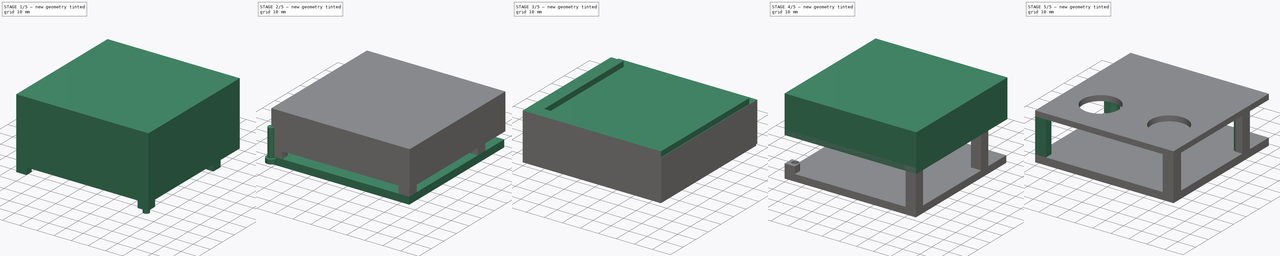
[diagram: build sequence overview — one tinted view per stage of 5, left to right]
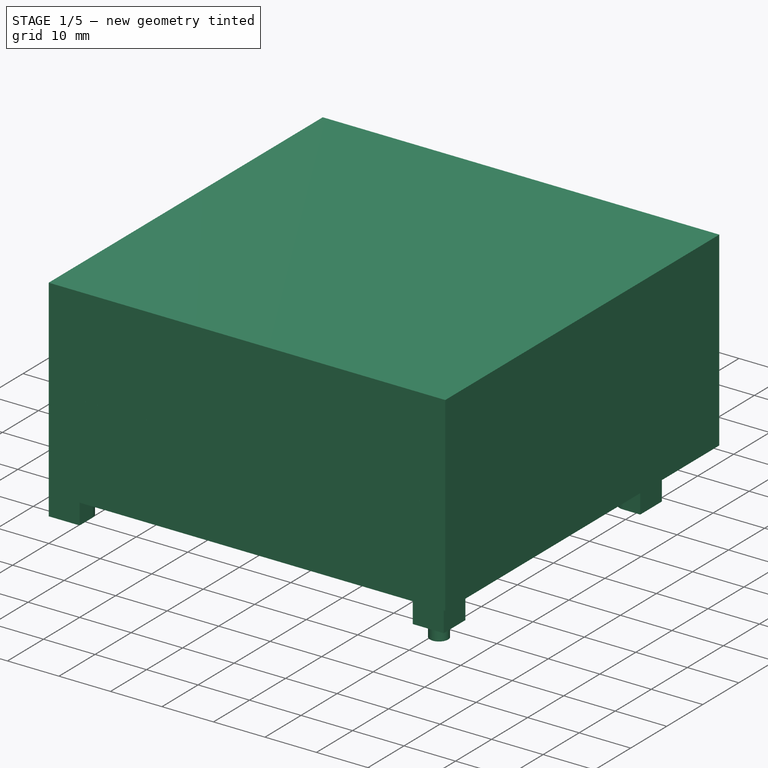
[diagram: stage 1 of 5 — iso view after this stage's code; geometry added in this stage tinted green]
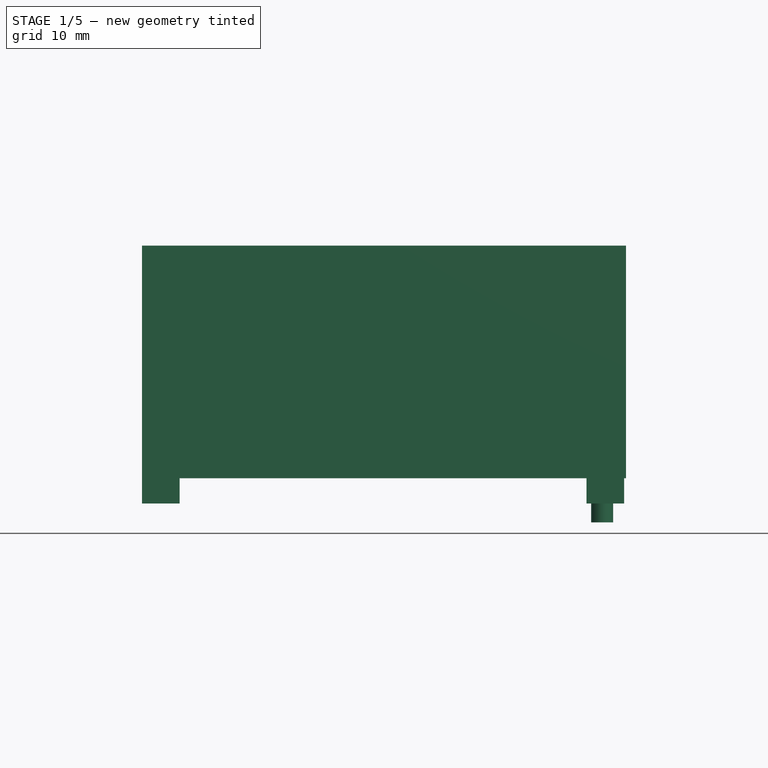
[diagram: stage 1 of 5 — front view after this stage's code; geometry added in this stage tinted green]
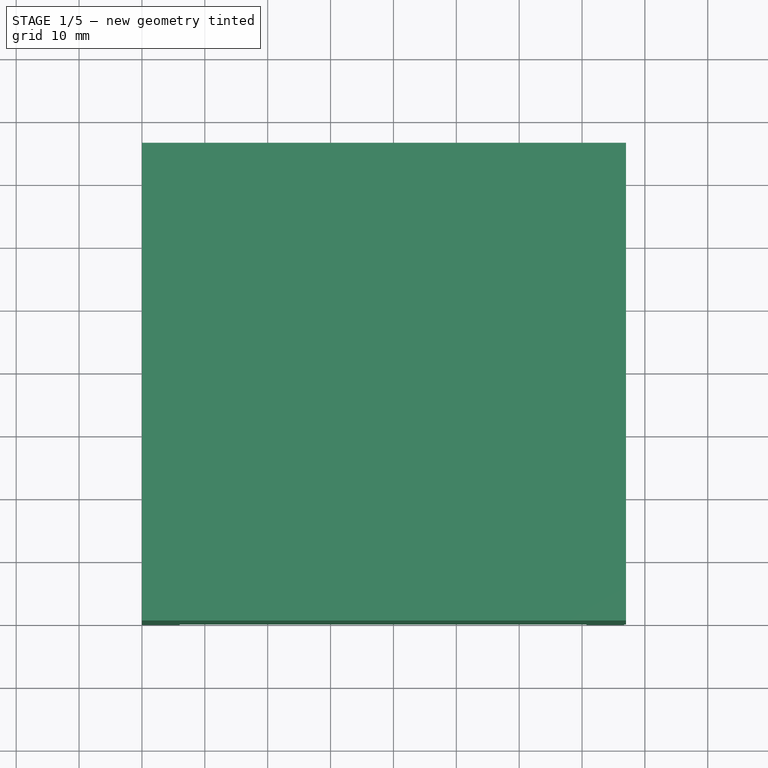
[diagram: stage 1 of 5 — top view after this stage's code; geometry added in this stage tinted green]
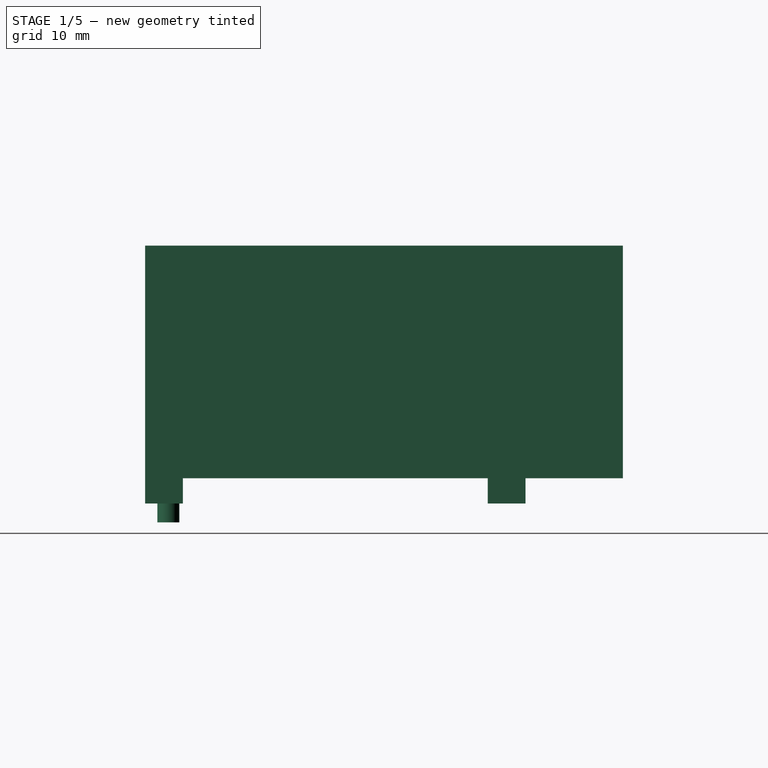
[diagram: stage 1 of 5 — right view after this stage's code; geometry added in this stage tinted green]
FCSTD DOCUMENT  (FreeCAD 0.19R24291 (Git))
Label: vacuum-tube-top-plate
License: All rights reserved
LicenseURL: http://en.wikipedia.org/wiki/All_rights_reserved
objects: Part::Cylinder×20, Part::Box×19, Part::Cut×17, Part::Fillet×12, Part::MultiFuse×11, Sketcher::SketchObject×4, Part::Extrusion×4, Part::Compound×1
note: 88 computed .brp shape members not serialized (recipe doc carries the construction recipe); baked Part::Feature solids carry a one-line shape summary decoded from their .brp

FEATURE [Part::Cylinder] Cylinder010  label="threaded-cutout-tr002"
  Angle = 360
  AttacherType = Attacher::AttachEngine3D
  Height = 22
  Placement = pos=(73.2,57.5,0) rot=(0,0,1;0rad)
  Radius = 1.75
FEATURE [Part::Cylinder] Cylinder011  label="threaded-cutout-br002"
  Angle = 360
  AttacherType = Attacher::AttachEngine3D
  Height = 22
  Placement = pos=(73.2,3.7,0) rot=(0,0,1;0rad)
  Radius = 1.75
FEATURE [Part::Cylinder] Cylinder012  label="threaded-cutout-tl002"
  Angle = 360
  AttacherType = Attacher::AttachEngine3D
  Height = 22
  Placement = pos=(3.5,57.5,0) rot=(0,0,1;0rad)
  Radius = 1.75
FEATURE [Part::Box] Box014  label="post-bl002"
  AttacherType = Attacher::AttachEngine3D
  Height = 19
  Length = 6
  Placement = pos=(0,0,3) rot=(0,0,1;0rad)
  Width = 6
FEATURE [Part::Fillet] Fillet008
  Base = -> Box014
  Edges = 1 edges r=2.5: [Edge7]
FEATURE [Part::Box] Box015  label="post-br002"
  AttacherType = Attacher::AttachEngine3D
  Height = 19
  Length = 6
  Placement = pos=(70.7,0,3) rot=(0,0,1;0rad)
  Width = 6
FEATURE [Part::Fillet] Fillet011
  Base = -> Box015
  Edges = 1 edges r=2.5: [Edge3]
FEATURE [Part::Box] Box016  label="post-tr002"
  AttacherType = Attacher::AttachEngine3D
  Height = 19
  Length = 6
  Placement = pos=(70.7,54.5,3) rot=(0,0,1;0rad)
  Width = 6
FEATURE [Part::Fillet] Fillet010
  Base = -> Box016
  Edges = 2 edges r=2.8: [Edge1,Edge3]
FEATURE [Part::Box] Box017  label="post-tl002"
  AttacherType = Attacher::AttachEngine3D
  Height = 19
  Length = 6
  Placement = pos=(0,54.5,3) rot=(0,0,1;0rad)
  Width = 6
FEATURE [Part::Fillet] Fillet009
  Base = -> Box017
  Edges = 2 edges r=2.8: [Edge5,Edge7]
FEATURE [Sketcher::SketchObject] Sketch003
  FullyConstrained = true
  sketch-geometry (10):
    g0: LineSegment StartX=0 StartY=0 StartZ=0 EndX=76.7 EndY=0 EndZ=0
    g1: LineSegment StartX=76.7 StartY=0 StartZ=0 EndX=76.7 EndY=75.5 EndZ=0
    g2: LineSegment StartX=76.7 StartY=75.5 StartZ=0 EndX=0 EndY=75.5 EndZ=0
    g3: LineSegment StartX=0 StartY=75.5 StartZ=0 EndX=0 EndY=0 EndZ=0
    g4: Circle CenterX=58.7 CenterY=22.3 CenterZ=0 NormalX=0 NormalY=0 NormalZ=1 AngleXU=0 Radius=10
    g5: Circle CenterX=20.7 CenterY=22.3 CenterZ=0 NormalX=0 NormalY=0 NormalZ=1 AngleXU=0 Radius=10
    g6: Circle CenterX=3.5 CenterY=3.7 CenterZ=0 NormalX=0 NormalY=0 NormalZ=1 AngleXU=0 Radius=1.75
    g7: Circle CenterX=73.2 CenterY=3.7 CenterZ=0 NormalX=0 NormalY=0 NormalZ=1 AngleXU=0 Radius=1.75
    g8: Circle CenterX=3.5 CenterY=57.5 CenterZ=0 NormalX=0 NormalY=0 NormalZ=1 AngleXU=0 Radius=1.75
    g9: Circle CenterX=73.2 CenterY=57.5 CenterZ=0 NormalX=0 NormalY=0 NormalZ=1 AngleXU=0 Radius=1.75
  constraints (29):
    c: Coincident(g0,g1)
    c: Coincident(g1,g2)
    c: Coincident(g2,g3)
    c: Coincident(g3,g0)
    c: Horizontal(g0)
    c: Horizontal(g2)
    c: Vertical(g1)
    c: Vertical(g3)
    c: Coincident(g0,g-1)
    c: DistanceX(g2,g2) = 76.7
    c: DistanceY(g1,g1) = 75.5
    c: Equal(g5,g4)
    c: DistanceY(g4,g5) = 0
    c: DistanceY(g0,g4) = 22.3
    c: DistanceX(g4,g0) = 18
    c: DistanceX(g5,g4) = 38
    c: DistanceY(g7,g6) = 0
    c: DistanceY(g0,g6) = 3.7
    c: DistanceX(g0,g6) = 3.5
    c: DistanceX(g7,g0) = 3.5
    c: Equal(g6,g7)
    c: Radius(g5) = 10
    c: Equal(g8,g9)
    c: DistanceY(g9,g8) = 0
    c: DistanceX(g9,g7) = 0
    c: DistanceX(g6,g8) = 0
    c: DistanceY(g8,g2) = 18
    c: Equal(g8,g6)
    c: Radius(g8) = 1.75
FEATURE [Part::Extrusion] Extrude003  label="vacuum-tube-top-plate002"
  Base = -> Sketch003
  Dir = (0,0,1)
  DirMode = 2
  FaceMakerClass = Part::FaceMakerBullseye
  LengthFwd = 3
  LengthRev = 0
  Placement = pos=(0,0,22) rot=(0,0,1;0rad)
  Solid = true
  Symmetric = false
FEATURE [Part::MultiFuse] Fusion002
  Shapes = -> [Fillet008,Fillet009,Fillet010,Fillet011,Extrude003]
FEATURE [Part::Cut] Cut011
  Base = -> Fusion002
  Tool = -> Cylinder010
FEATURE [Part::Cut] Cut010
  Base = -> Cut011
  Tool = -> Cylinder012
FEATURE [Part::Box] Box018  label="slicing-cube002"
  AttacherType = Attacher::AttachEngine3D
  Height = 22
  Length = 77
  Placement = pos=(0,0,22) rot=(0,0,1;0rad)
  Width = 76
FEATURE [Part::Box] Box022  label="Cube"
  AttacherType = Attacher::AttachEngine3D
  Height = 20
  Length = 77
  Placement = pos=(0,0,7) rot=(0,0,1;0rad)
  Width = 76
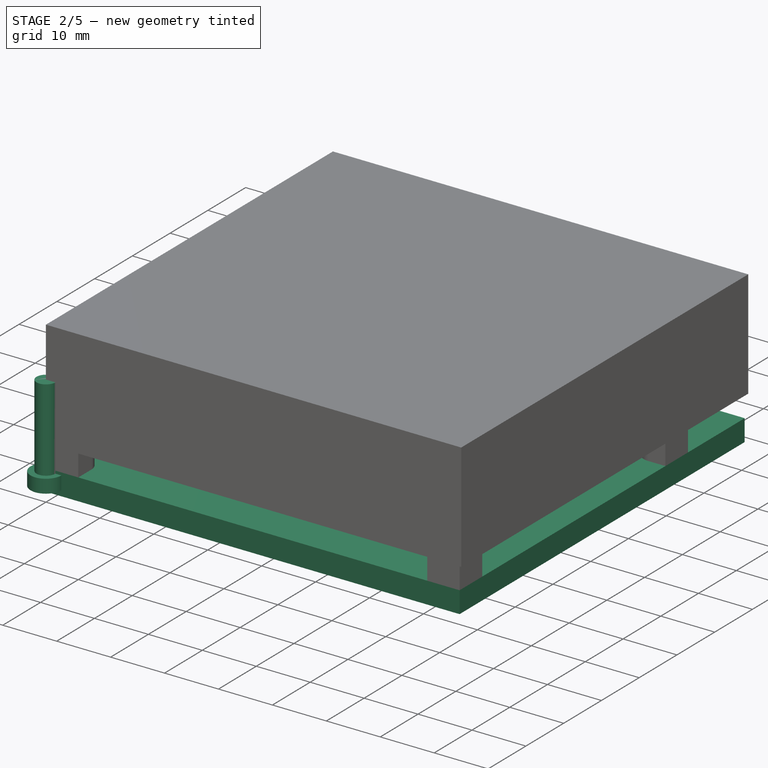
[diagram: stage 2 of 5 — iso view after this stage's code; geometry added in this stage tinted green]
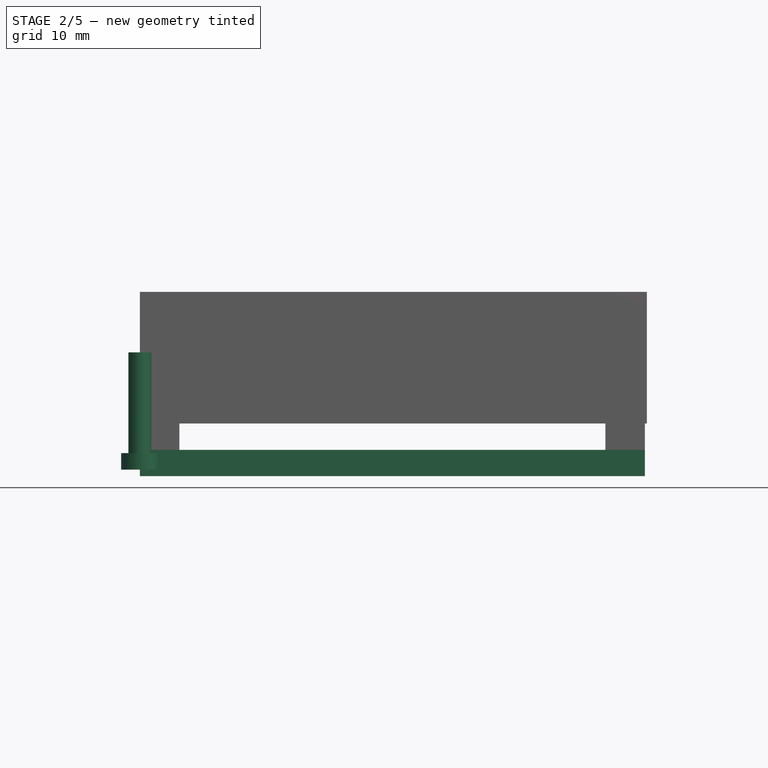
[diagram: stage 2 of 5 — front view after this stage's code; geometry added in this stage tinted green]
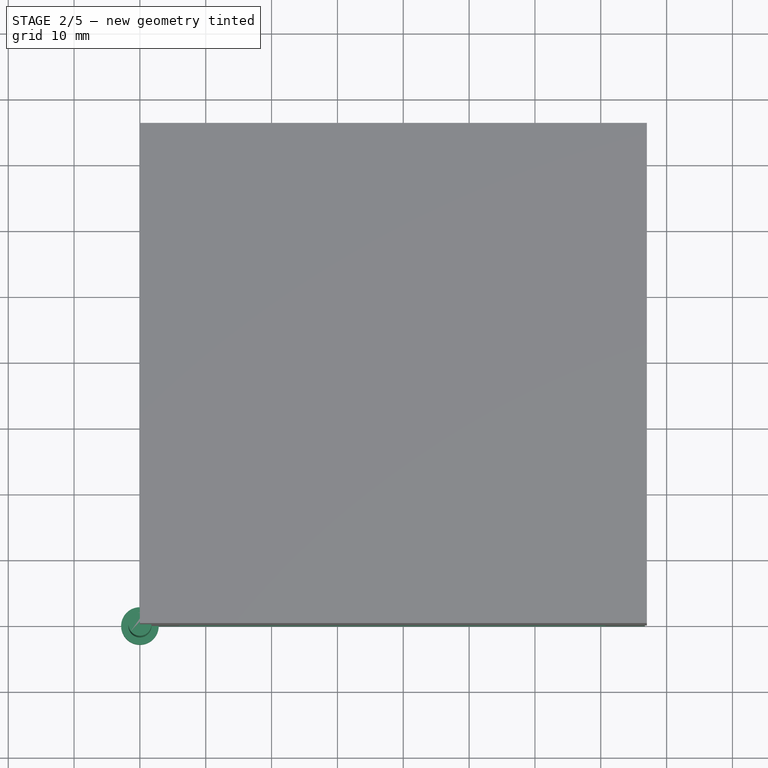
[diagram: stage 2 of 5 — top view after this stage's code; geometry added in this stage tinted green]
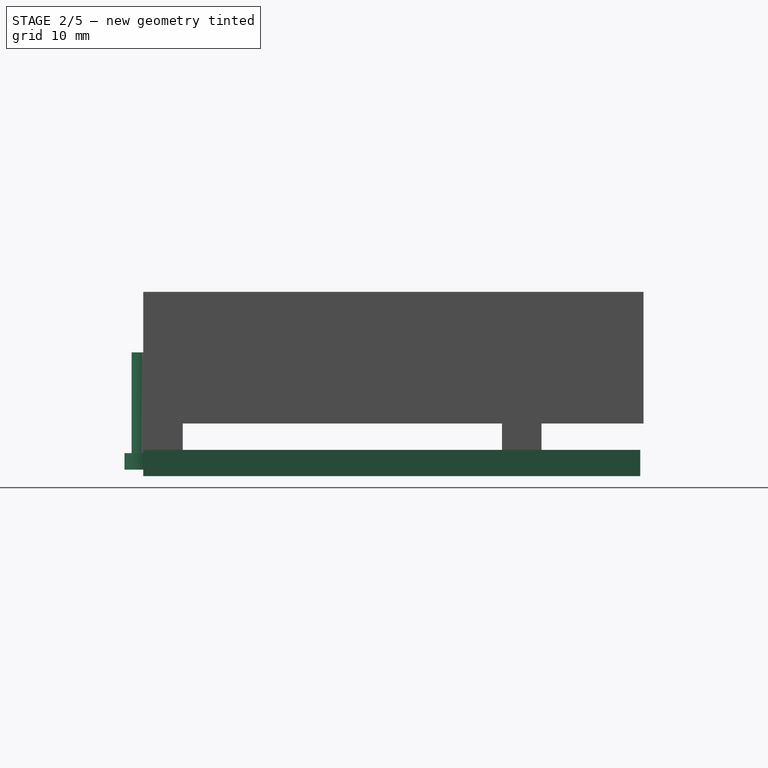
[diagram: stage 2 of 5 — right view after this stage's code; geometry added in this stage tinted green]
FEATURE [Sketcher::SketchObject] Sketch002
  FullyConstrained = true
  sketch-geometry (8):
    g0: LineSegment StartX=0 StartY=0 StartZ=0 EndX=76.7 EndY=0 EndZ=0
    g1: LineSegment StartX=76.7 StartY=0 StartZ=0 EndX=76.7 EndY=75.5 EndZ=0
    g2: LineSegment StartX=76.7 StartY=75.5 StartZ=0 EndX=0 EndY=75.5 EndZ=0
    g3: LineSegment StartX=0 StartY=75.5 StartZ=0 EndX=0 EndY=0 EndZ=0
    g4: Circle CenterX=3.5 CenterY=3.7 CenterZ=0 NormalX=0 NormalY=0 NormalZ=1 AngleXU=0 Radius=1.75
    g5: Circle CenterX=73.2 CenterY=3.7 CenterZ=0 NormalX=0 NormalY=0 NormalZ=1 AngleXU=0 Radius=1.75
    g6: Circle CenterX=3.5 CenterY=57.5 CenterZ=0 NormalX=0 NormalY=0 NormalZ=1 AngleXU=0 Radius=1.75
    g7: Circle CenterX=73.2 CenterY=57.5 CenterZ=0 NormalX=0 NormalY=0 NormalZ=1 AngleXU=0 Radius=1.75
  constraints (23):
    c: Coincident(g0,g1)
    c: Coincident(g1,g2)
    c: Coincident(g2,g3)
    c: Coincident(g3,g0)
    c: Horizontal(g0)
    c: Horizontal(g2)
    c: Vertical(g1)
    c: Vertical(g3)
    c: Coincident(g0,g-1)
    c: DistanceX(g2,g2) = 76.7
    c: DistanceY(g1,g1) = 75.5
    c: DistanceY(g5,g4) = 0
    c: DistanceY(g0,g4) = 3.7
    c: DistanceX(g0,g4) = 3.5
    c: DistanceX(g5,g0) = 3.5
    c: Equal(g4,g5)
    c: Equal(g6,g7)
    c: DistanceY(g7,g6) = 0
    c: DistanceX(g7,g5) = 0
    c: DistanceX(g4,g6) = 0
    c: DistanceY(g6,g2) = 18
    c: Equal(g6,g4)
    c: Radius(g6) = 1.75
FEATURE [Part::Extrusion] Extrude002  label="just-bottom-plate"
  Base = -> Sketch002
  Dir = (0,0,1)
  DirMode = 2
  FaceMakerClass = Part::FaceMakerBullseye
  LengthFwd = 4
  LengthRev = 0
  Placement = pos=(0,0,-1) rot=(0,0,1;0rad)
  Solid = true
  Symmetric = false
FEATURE [Part::Cylinder] Cylinder009  label="threaded-cutout-bl002"
  Angle = 360
  AttacherType = Attacher::AttachEngine3D
  Height = 22
  Placement = pos=(3.5,3.7,0) rot=(0,0,1;0rad)
  Radius = 1.75
FEATURE [Part::Cut] Cut012
  Base = -> Cut010
  Tool = -> Cylinder011
FEATURE [Part::Cut] Cut013  label="top-plate-with-posts002"
  Base = -> Cut012
  Tool = -> Cylinder009
FEATURE [Part::Cut] Cut014  label="just-bottom-legs"
  Base = -> Cut013
  Tool = -> Box018
FEATURE [Part::Cylinder] Cylinder013  label="m3x10-head"
  Angle = 360
  AttacherType = Attacher::AttachEngine3D
  Height = 2.5
  Radius = 2.85
FEATURE [Part::Cylinder] Cylinder014  label="m3x10-screws-unthreaded"
  Angle = 360
  AttacherType = Attacher::AttachEngine3D
  Height = 15.8
  Placement = pos=(0,0,2) rot=(0,0,1;0rad)
  Radius = 1.75
FEATURE [Part::Cylinder] Cylinder015  label="m3x10-screws-unthreaded001"
  Angle = 360
  AttacherType = Attacher::AttachEngine3D
  Height = 15.8
  Placement = pos=(0,0,2) rot=(0,0,1;0rad)
  Radius = 1.75
FEATURE [Part::Cylinder] Cylinder016  label="m3x10-head001"
  Angle = 360
  AttacherType = Attacher::AttachEngine3D
  Height = 2.5
  Radius = 2.85
FEATURE [Part::MultiFuse] Fusion007  label="m3x10-unthreaded-cutout001"
  Placement = pos=(73.2,3.7,-1) rot=(0,0,1;0rad)
  Shapes = -> [Cylinder016,Cylinder015]
FEATURE [Part::Cylinder] Cylinder017  label="m3x10-screws-unthreaded002"
  Angle = 360
  AttacherType = Attacher::AttachEngine3D
  Height = 15.8
  Placement = pos=(0,0,2) rot=(0,0,1;0rad)
  Radius = 1.75
FEATURE [Part::Cylinder] Cylinder018  label="m3x10-head002"
  Angle = 360
  AttacherType = Attacher::AttachEngine3D
  Height = 2.5
  Radius = 2.85
FEATURE [Part::MultiFuse] Fusion008  label="m3x10-unthreaded-cutout002"
  Placement = pos=(73.2,57.5,-1) rot=(0,0,1;0rad)
  Shapes = -> [Cylinder018,Cylinder017]
FEATURE [Part::Cylinder] Cylinder019  label="m3x10-screws-unthreaded003"
  Angle = 360
  AttacherType = Attacher::AttachEngine3D
  Height = 15.8
  Placement = pos=(0,0,2) rot=(0,0,1;0rad)
  Radius = 1.75
FEATURE [Part::Cylinder] Cylinder020  label="m3x10-head003"
  Angle = 360
  AttacherType = Attacher::AttachEngine3D
  Height = 2.5
  Radius = 2.85
FEATURE [Part::MultiFuse] Fusion009  label="m3x10-unthreaded-cutout003"
  Placement = pos=(3.5,57.5,-1) rot=(0,0,1;0rad)
  Shapes = -> [Cylinder020,Cylinder019]
FEATURE [Part::MultiFuse] Fusion010
  Shapes = -> [Cut014,Extrude002]
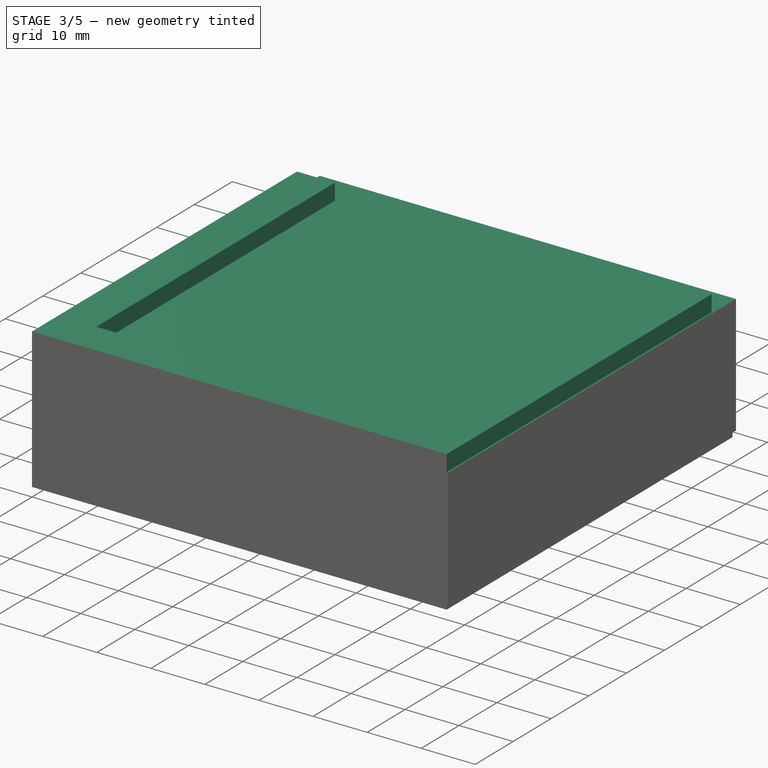
[diagram: stage 3 of 5 — iso view after this stage's code; geometry added in this stage tinted green]
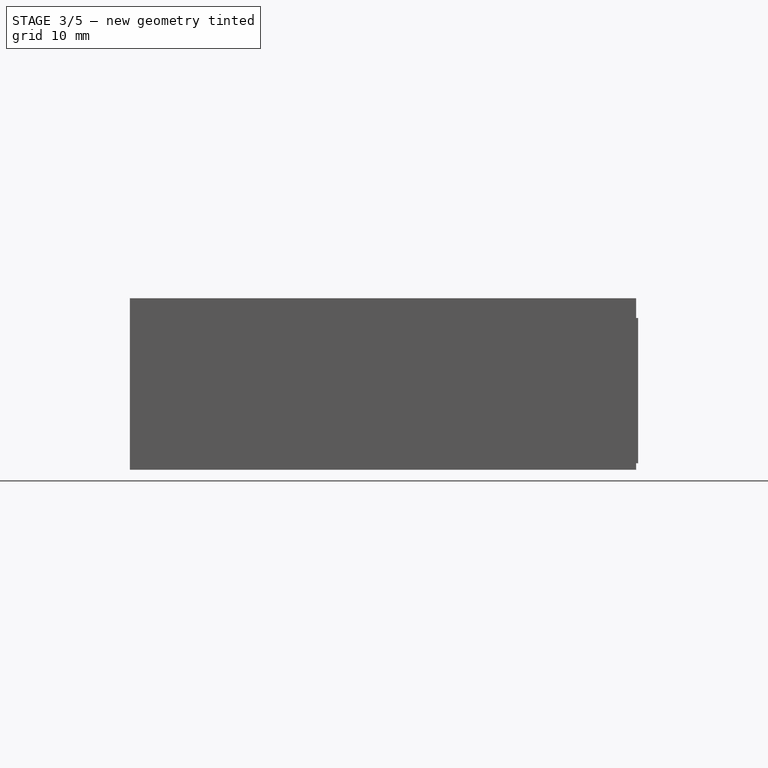
[diagram: stage 3 of 5 — front view after this stage's code; geometry added in this stage tinted green]
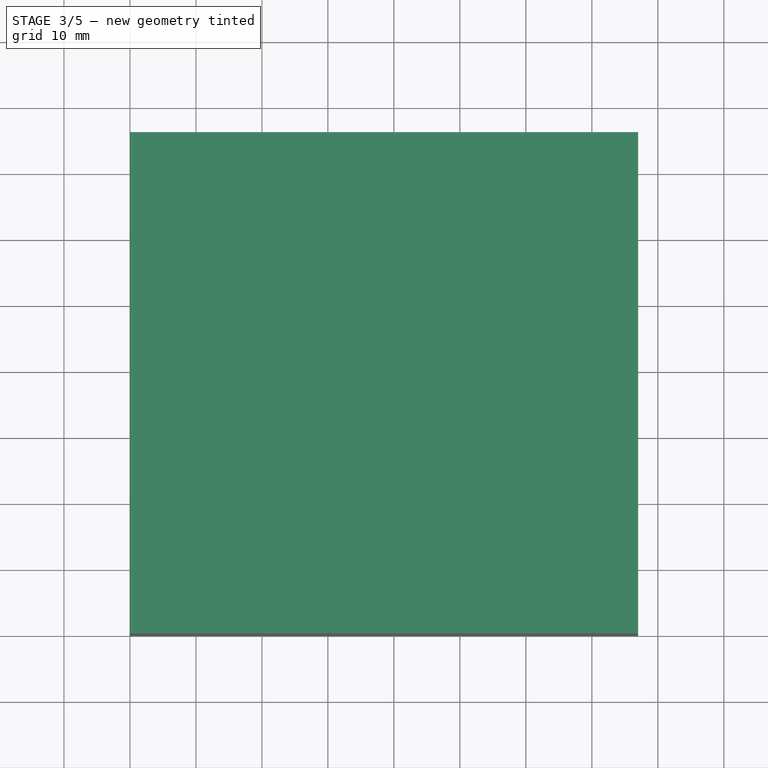
[diagram: stage 3 of 5 — top view after this stage's code; geometry added in this stage tinted green]
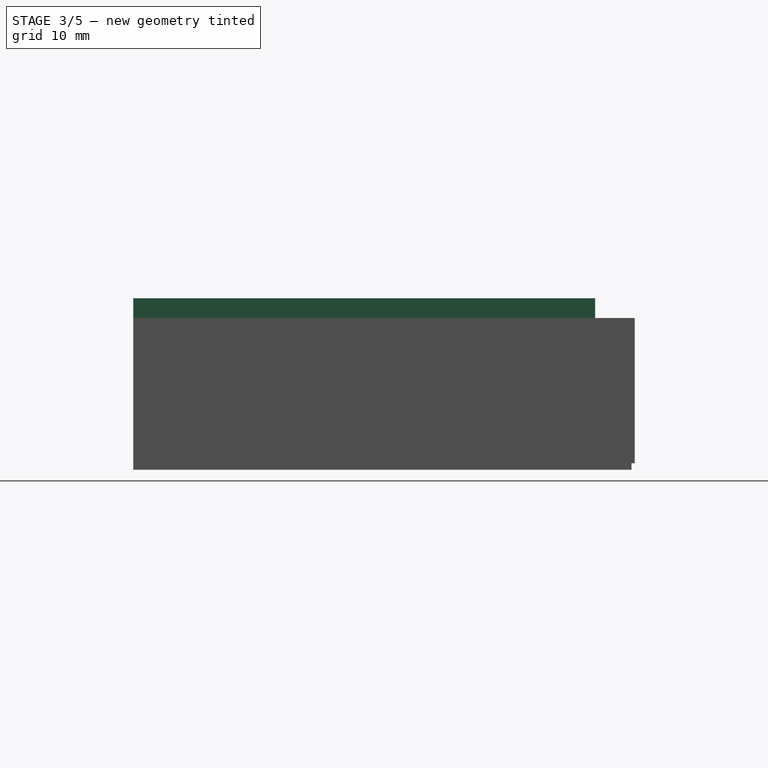
[diagram: stage 3 of 5 — right view after this stage's code; geometry added in this stage tinted green]
FEATURE [Part::Box] Box009  label="post-bl001"
  AttacherType = Attacher::AttachEngine3D
  Height = 19
  Length = 6
  Placement = pos=(0,0,3) rot=(0,0,1;0rad)
  Width = 6
FEATURE [Part::Box] Box010  label="post-br001"
  AttacherType = Attacher::AttachEngine3D
  Height = 19
  Length = 6
  Placement = pos=(70.7,0,3) rot=(0,0,1;0rad)
  Width = 6
FEATURE [Part::Fillet] Fillet007
  Base = -> Box010
  Edges = 1 edges r=2.5: [Edge3]
FEATURE [Part::Box] Box011  label="post-tr001"
  AttacherType = Attacher::AttachEngine3D
  Height = 19
  Length = 6
  Placement = pos=(70.7,54.5,3) rot=(0,0,1;0rad)
  Width = 6
FEATURE [Part::Fillet] Fillet006
  Base = -> Box011
  Edges = 2 edges r=2.8: [Edge1,Edge3]
FEATURE [Part::Box] Box012  label="post-tl001"
  AttacherType = Attacher::AttachEngine3D
  Height = 19
  Length = 6
  Placement = pos=(0,54.5,3) rot=(0,0,1;0rad)
  Width = 6
FEATURE [Part::Fillet] Fillet005
  Base = -> Box012
  Edges = 2 edges r=2.8: [Edge5,Edge7]
FEATURE [Part::Box] Box013  label="slicing-cube001"
  AttacherType = Attacher::AttachEngine3D
  Height = 22
  Length = 77
  Width = 76
FEATURE [Part::Box] Box019  label="hole-filler"
  AttacherType = Attacher::AttachEngine3D
  Height = 3
  Length = 76.7
  Width = 7
FEATURE [Part::Box] Box020  label="hole-filler-vert"
  AttacherType = Attacher::AttachEngine3D
  Height = 3
  Length = 7
  Width = 70
FEATURE [Part::Box] Box021  label="hole-filler-vert001"
  AttacherType = Attacher::AttachEngine3D
  Height = 3
  Length = 7
  Placement = pos=(69.7,0,0) rot=(0,0,1;0rad)
  Width = 70
FEATURE [Part::MultiFuse] Fusion003  label="screw-hole-filler"
  Placement = pos=(0,0,22) rot=(0,0,1;0rad)
  Shapes = -> [Box019,Box020,Box021]
FEATURE [Part::MultiFuse] Fusion006  label="m3x10-unthreaded-cutout"
  Placement = pos=(3.5,3.7,-1) rot=(0,0,1;0rad)
  Shapes = -> [Cylinder013,Cylinder014]
FEATURE [Part::Compound] Compound
  Links = -> [Fusion006,Fusion007,Fusion008,Fusion009]
FEATURE [Part::Cut] Cut015
  Base = -> Fusion010
  Tool = -> Compound
FEATURE [Part::Cut] Cut016  label="just-bottom-plate-with-legs"
  Base = -> Cut015
  Tool = -> Box022
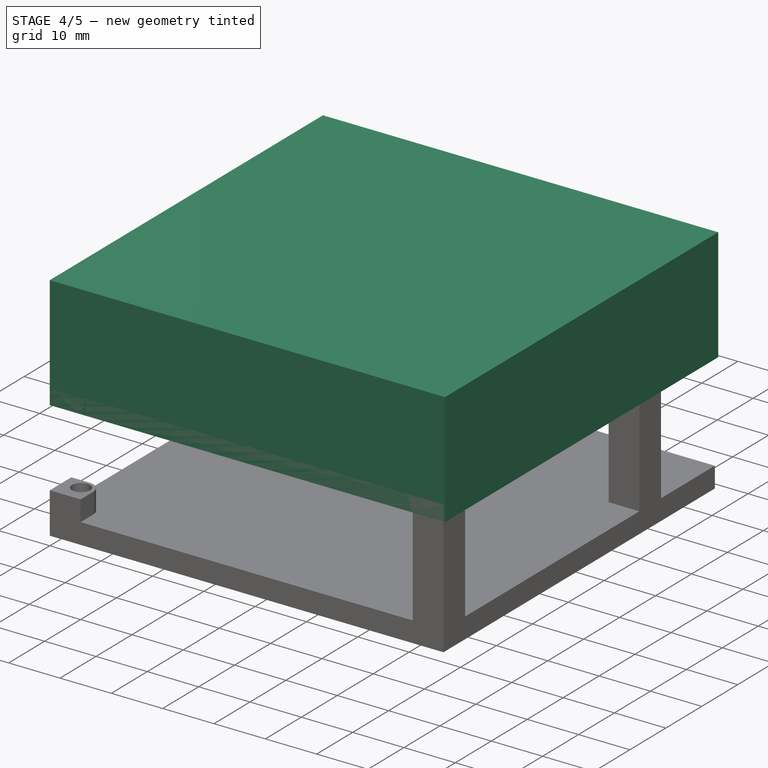
[diagram: stage 4 of 5 — iso view after this stage's code; geometry added in this stage tinted green]
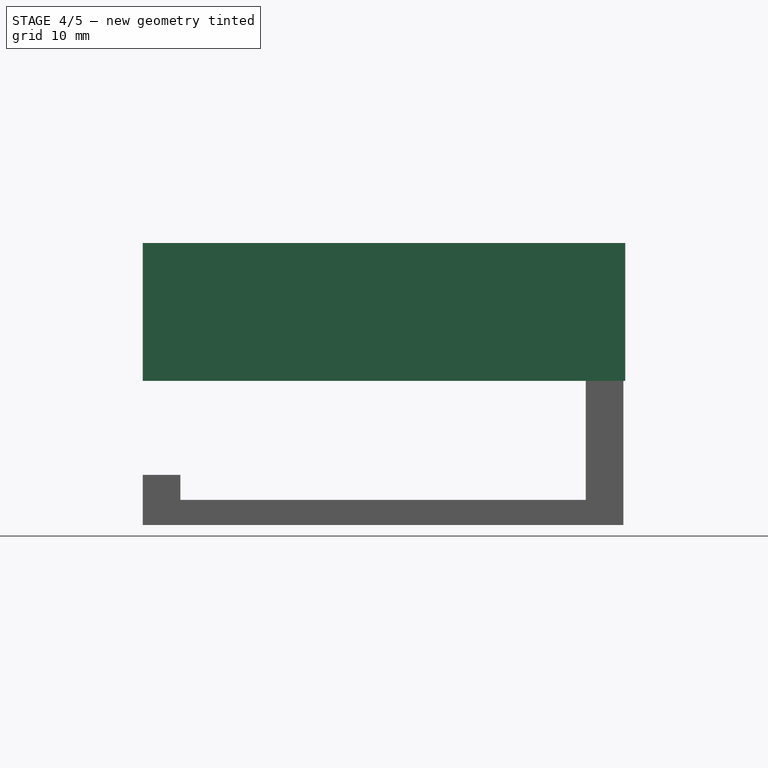
[diagram: stage 4 of 5 — front view after this stage's code; geometry added in this stage tinted green]
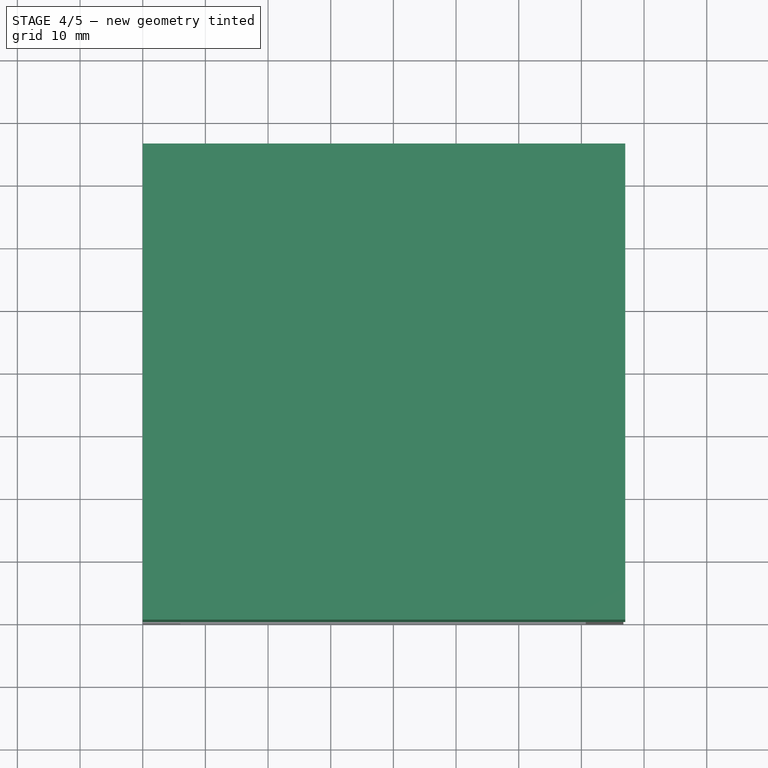
[diagram: stage 4 of 5 — top view after this stage's code; geometry added in this stage tinted green]
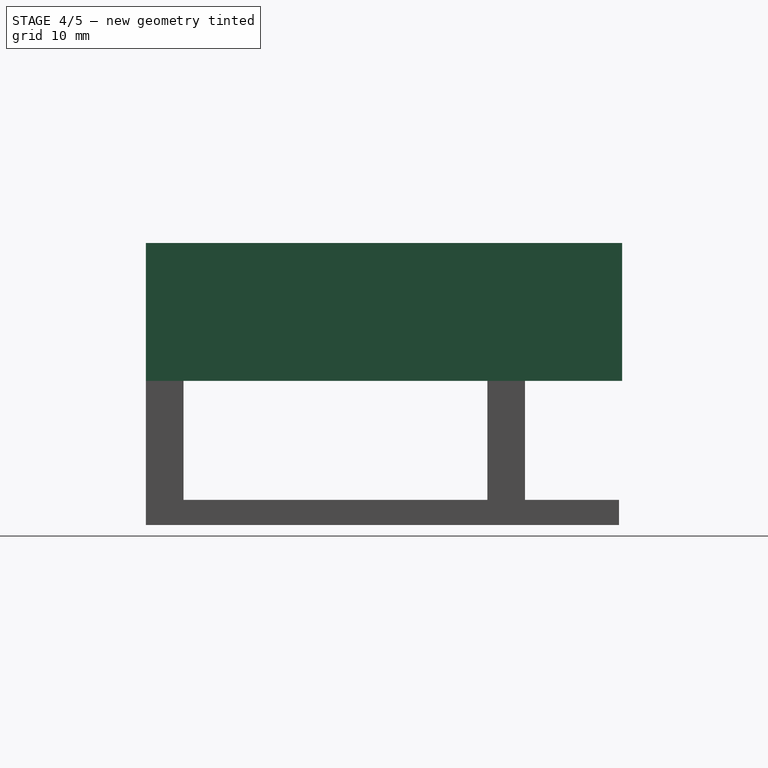
[diagram: stage 4 of 5 — right view after this stage's code; geometry added in this stage tinted green]
FEATURE [Part::Box] Box001  label="post-br"
  AttacherType = Attacher::AttachEngine3D
  Height = 19
  Length = 6
  Placement = pos=(70.7,0,3) rot=(0,0,1;0rad)
  Width = 6
FEATURE [Part::Box] Box002  label="post-tr"
  AttacherType = Attacher::AttachEngine3D
  Height = 19
  Length = 6
  Placement = pos=(70.7,54.5,3) rot=(0,0,1;0rad)
  Width = 6
FEATURE [Part::Fillet] Fillet003
  Base = -> Box001
  Edges = 1 edges r=2.5: [Edge3]
FEATURE [Part::Box] Box008  label="slicing-cube"
  AttacherType = Attacher::AttachEngine3D
  Height = 22
  Length = 77
  Placement = pos=(0,0,22) rot=(0,0,1;0rad)
  Width = 76
FEATURE [Part::Cylinder] Cylinder005  label="threaded-cutout-bl001"
  Angle = 360
  AttacherType = Attacher::AttachEngine3D
  Height = 22
  Placement = pos=(3.5,3.7,0) rot=(0,0,1;0rad)
  Radius = 1.25
FEATURE [Part::Cylinder] Cylinder006  label="threaded-cutout-tr001"
  Angle = 360
  AttacherType = Attacher::AttachEngine3D
  Height = 22
  Placement = pos=(73.2,57.5,0) rot=(0,0,1;0rad)
  Radius = 1.25
FEATURE [Part::Cylinder] Cylinder007  label="threaded-cutout-br001"
  Angle = 360
  AttacherType = Attacher::AttachEngine3D
  Height = 22
  Placement = pos=(73.2,3.7,0) rot=(0,0,1;0rad)
  Radius = 1.25
FEATURE [Part::Cylinder] Cylinder008  label="threaded-cutout-tl001"
  Angle = 360
  AttacherType = Attacher::AttachEngine3D
  Height = 22
  Placement = pos=(3.5,57.5,0) rot=(0,0,1;0rad)
  Radius = 1.25
FEATURE [Part::Fillet] Fillet004
  Base = -> Box009
  Edges = 1 edges r=2.5: [Edge7]
FEATURE [Sketcher::SketchObject] Sketch001
  FullyConstrained = true
  sketch-geometry (10):
    g0: LineSegment StartX=0 StartY=0 StartZ=0 EndX=76.7 EndY=0 EndZ=0
    g1: LineSegment StartX=76.7 StartY=0 StartZ=0 EndX=76.7 EndY=75.5 EndZ=0
    g2: LineSegment StartX=76.7 StartY=75.5 StartZ=0 EndX=0 EndY=75.5 EndZ=0
    g3: LineSegment StartX=0 StartY=75.5 StartZ=0 EndX=0 EndY=0 EndZ=0
    g4: Circle CenterX=58.7 CenterY=22.3 CenterZ=0 NormalX=0 NormalY=0 NormalZ=1 AngleXU=0 Radius=10
    g5: Circle CenterX=20.7 CenterY=22.3 CenterZ=0 NormalX=0 NormalY=0 NormalZ=1 AngleXU=0 Radius=10
    g6: Circle CenterX=3.5 CenterY=3.7 CenterZ=0 NormalX=0 NormalY=0 NormalZ=1 AngleXU=0 Radius=1.75
    g7: Circle CenterX=73.2 CenterY=3.7 CenterZ=0 NormalX=0 NormalY=0 NormalZ=1 AngleXU=0 Radius=1.75
    g8: Circle CenterX=3.5 CenterY=57.5 CenterZ=0 NormalX=0 NormalY=0 NormalZ=1 AngleXU=0 Radius=1.75
    g9: Circle CenterX=73.2 CenterY=57.5 CenterZ=0 NormalX=0 NormalY=0 NormalZ=1 AngleXU=0 Radius=1.75
  constraints (29):
    c: Coincident(g0,g1)
    c: Coincident(g1,g2)
    c: Coincident(g2,g3)
    c: Coincident(g3,g0)
    c: Horizontal(g0)
    c: Horizontal(g2)
    c: Vertical(g1)
    c: Vertical(g3)
    c: Coincident(g0,g-1)
    c: DistanceX(g2,g2) = 76.7
    c: DistanceY(g1,g1) = 75.5
    c: Equal(g5,g4)
    c: DistanceY(g4,g5) = 0
    c: DistanceY(g0,g4) = 22.3
    c: DistanceX(g4,g0) = 18
    c: DistanceX(g5,g4) = 38
    c: DistanceY(g7,g6) = 0
    c: DistanceY(g0,g6) = 3.7
    c: DistanceX(g0,g6) = 3.5
    c: DistanceX(g7,g0) = 3.5
    c: Equal(g6,g7)
    c: Radius(g5) = 10
    c: Equal(g8,g9)
    c: DistanceY(g9,g8) = 0
    c: DistanceX(g9,g7) = 0
    c: DistanceX(g6,g8) = 0
    c: DistanceY(g8,g2) = 18
    c: Equal(g8,g6)
    c: Radius(g8) = 1.75
FEATURE [Part::Extrusion] Extrude001  label="vacuum-tube-top-plate001"
  Base = -> Sketch001
  Dir = (0,0,1)
  DirMode = 2
  FaceMakerClass = Part::FaceMakerBullseye
  LengthFwd = 3
  LengthRev = 0
  Placement = pos=(0,0,22) rot=(0,0,1;0rad)
  Solid = true
  Symmetric = false
FEATURE [Part::MultiFuse] Fusion001
  Shapes = -> [Fillet004,Fillet005,Fillet006,Fillet007,Extrude001]
FEATURE [Part::Cut] Cut005
  Base = -> Fusion001
  Tool = -> Cylinder006
FEATURE [Part::Cut] Cut004
  Base = -> Cut005
  Tool = -> Cylinder008
FEATURE [Part::Cut] Cut006
  Base = -> Cut004
  Tool = -> Cylinder007
FEATURE [Part::Cut] Cut007  label="top-plate-with-posts001"
  Base = -> Cut006
  Tool = -> Cylinder005
FEATURE [Part::Cut] Cut008  label="top-plate-with-holes"
  Base = -> Cut007
  Tool = -> Box013
FEATURE [Part::MultiFuse] Fusion004  label="top-plate-without-holes]"
  Shapes = -> [Cut008,Fusion003]
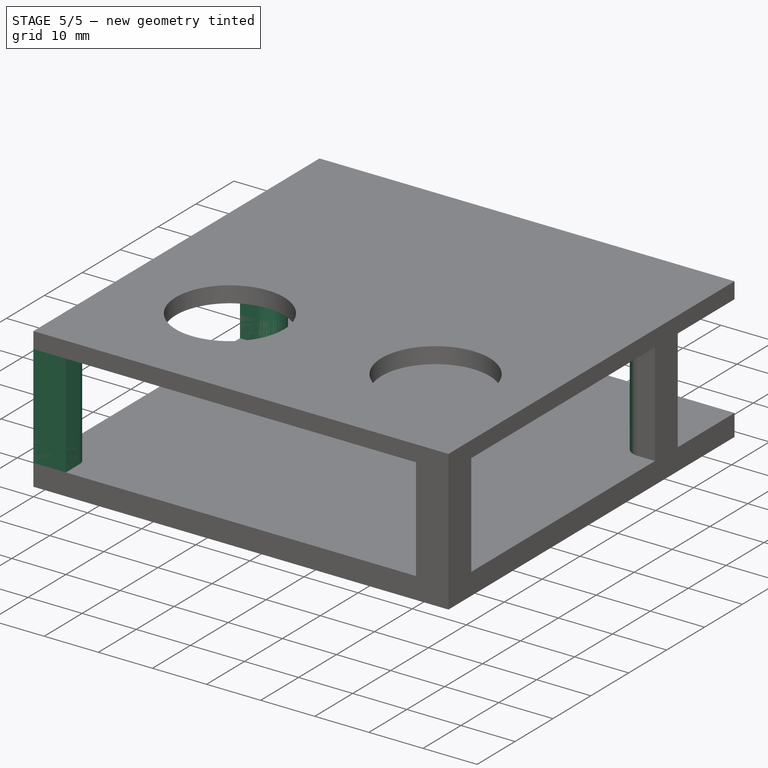
[diagram: stage 5 of 5 — iso view after this stage's code; geometry added in this stage tinted green]
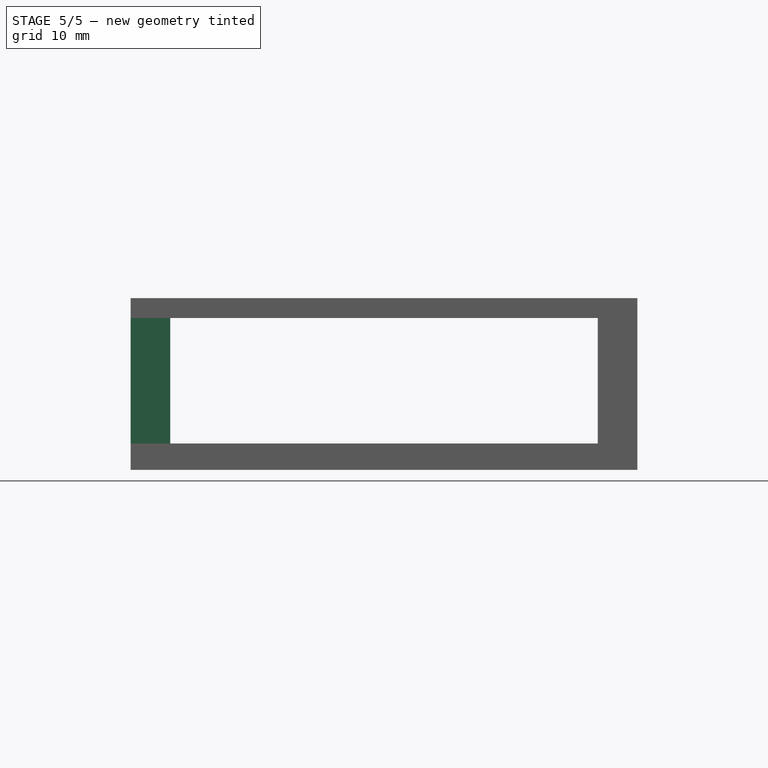
[diagram: stage 5 of 5 — front view after this stage's code; geometry added in this stage tinted green]
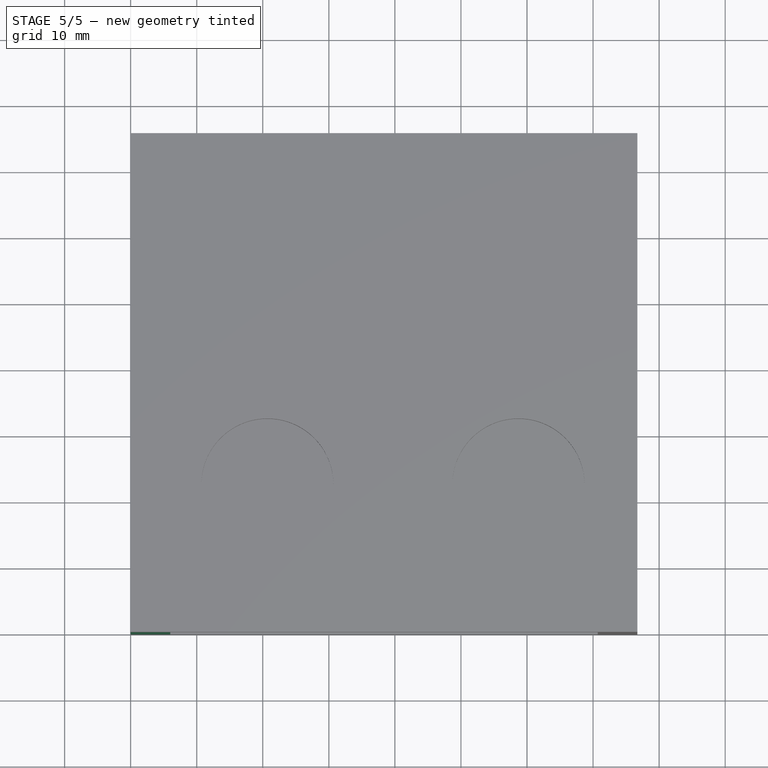
[diagram: stage 5 of 5 — top view after this stage's code; geometry added in this stage tinted green]
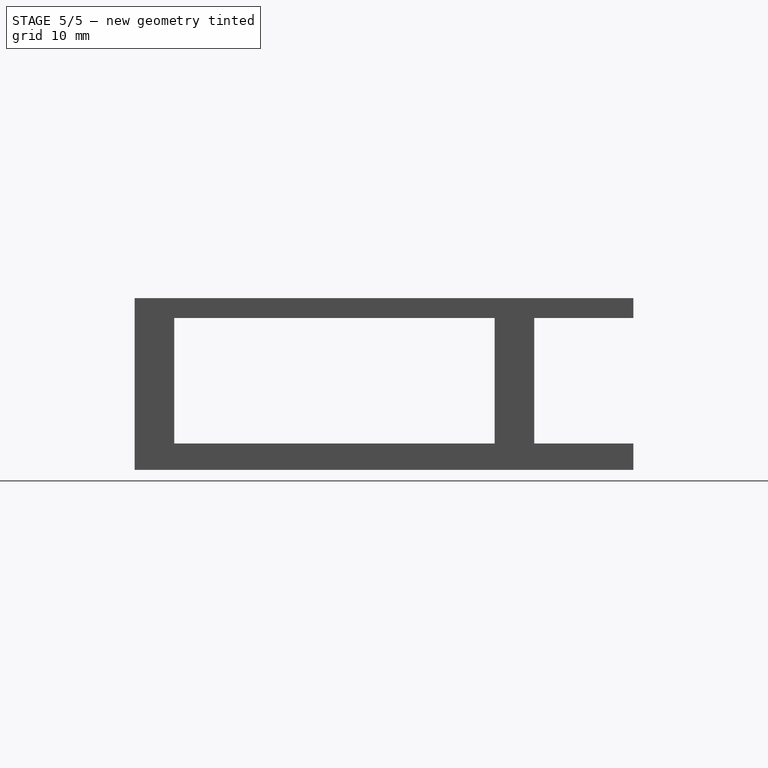
[diagram: stage 5 of 5 — right view after this stage's code; geometry added in this stage tinted green]
FEATURE [Sketcher::SketchObject] Sketch
  FullyConstrained = true
  sketch-geometry (10):
    g0: LineSegment StartX=0 StartY=0 StartZ=0 EndX=76.7 EndY=0 EndZ=0
    g1: LineSegment StartX=76.7 StartY=0 StartZ=0 EndX=76.7 EndY=75.5 EndZ=0
    g2: LineSegment StartX=76.7 StartY=75.5 StartZ=0 EndX=0 EndY=75.5 EndZ=0
    g3: LineSegment StartX=0 StartY=75.5 StartZ=0 EndX=0 EndY=0 EndZ=0
    g4: Circle CenterX=58.7 CenterY=22.3 CenterZ=0 NormalX=0 NormalY=0 NormalZ=1 AngleXU=0 Radius=10
    g5: Circle CenterX=20.7 CenterY=22.3 CenterZ=0 NormalX=0 NormalY=0 NormalZ=1 AngleXU=0 Radius=10
    g6: Circle CenterX=3.5 CenterY=3.7 CenterZ=0 NormalX=0 NormalY=0 NormalZ=1 AngleXU=0 Radius=1.75
    g7: Circle CenterX=73.2 CenterY=3.7 CenterZ=0 NormalX=0 NormalY=0 NormalZ=1 AngleXU=0 Radius=1.75
    g8: Circle CenterX=3.5 CenterY=57.5 CenterZ=0 NormalX=0 NormalY=0 NormalZ=1 AngleXU=0 Radius=1.75
    g9: Circle CenterX=73.2 CenterY=57.5 CenterZ=0 NormalX=0 NormalY=0 NormalZ=1 AngleXU=0 Radius=1.75
  constraints (29):
    c: Coincident(g0,g1)
    c: Coincident(g1,g2)
    c: Coincident(g2,g3)
    c: Coincident(g3,g0)
    c: Horizontal(g0)
    c: Horizontal(g2)
    c: Vertical(g1)
    c: Vertical(g3)
    c: Coincident(g0,g-1)
    c: DistanceX(g2,g2) = 76.7
    c: DistanceY(g1,g1) = 75.5
    c: Equal(g5,g4)
    c: DistanceY(g4,g5) = 0
    c: DistanceY(g0,g4) = 22.3
    c: DistanceX(g4,g0) = 18
    c: DistanceX(g5,g4) = 38
    c: DistanceY(g7,g6) = 0
    c: DistanceY(g0,g6) = 3.7
    c: DistanceX(g0,g6) = 3.5
    c: DistanceX(g7,g0) = 3.5
    c: Equal(g6,g7)
    c: Radius(g5) = 10
    c: Equal(g8,g9)
    c: DistanceY(g9,g8) = 0
    c: DistanceX(g9,g7) = 0
    c: DistanceX(g6,g8) = 0
    c: DistanceY(g8,g2) = 18
    c: Equal(g8,g6)
    c: Radius(g8) = 1.75
FEATURE [Part::Extrusion] Extrude  label="vacuum-tube-top-plate"
  Base = -> Sketch
  Dir = (0,0,1)
  DirMode = 2
  FaceMakerClass = Part::FaceMakerBullseye
  LengthFwd = 3
  LengthRev = 0
  Placement = pos=(0,0,22) rot=(0,0,1;0rad)
  Solid = true
  Symmetric = false
FEATURE [Part::Cylinder] Cylinder  label="threaded-cutout-bl"
  Angle = 360
  AttacherType = Attacher::AttachEngine3D
  Height = 22
  Placement = pos=(3.5,3.7,0) rot=(0,0,1;0rad)
  Radius = 1.25
FEATURE [Part::Cylinder] Cylinder001  label="threaded-cutout-br"
  Angle = 360
  AttacherType = Attacher::AttachEngine3D
  Height = 22
  Placement = pos=(73.2,3.7,0) rot=(0,0,1;0rad)
  Radius = 1.25
FEATURE [Part::Cylinder] Cylinder003  label="threaded-cutout-tl"
  Angle = 360
  AttacherType = Attacher::AttachEngine3D
  Height = 22
  Placement = pos=(3.5,57.5,0) rot=(0,0,1;0rad)
  Radius = 1.25
FEATURE [Part::Cylinder] Cylinder004  label="threaded-cutout-tr"
  Angle = 360
  AttacherType = Attacher::AttachEngine3D
  Height = 22
  Placement = pos=(73.2,57.5,0) rot=(0,0,1;0rad)
  Radius = 1.25
FEATURE [Part::Box] Box  label="post-bl"
  AttacherType = Attacher::AttachEngine3D
  Height = 19
  Length = 6
  Placement = pos=(0,0,3) rot=(0,0,1;0rad)
  Width = 6
FEATURE [Part::Box] Box003  label="post-tl"
  AttacherType = Attacher::AttachEngine3D
  Height = 19
  Length = 6
  Placement = pos=(0,54.5,3) rot=(0,0,1;0rad)
  Width = 6
FEATURE [Part::Fillet] Fillet
  Base = -> Box
  Edges = 1 edges r=2.5: [Edge7]
FEATURE [Part::Fillet] Fillet001
  Base = -> Box003
  Edges = 2 edges r=2.8: [Edge5,Edge7]
FEATURE [Part::Fillet] Fillet002
  Base = -> Box002
  Edges = 2 edges r=2.8: [Edge1,Edge3]
FEATURE [Part::MultiFuse] Fusion
  Shapes = -> [Fillet,Fillet001,Fillet002,Fillet003,Extrude]
FEATURE [Part::Cut] Cut
  Base = -> Fusion
  Tool = -> Cylinder004
FEATURE [Part::Cut] Cut001
  Base = -> Cut
  Tool = -> Cylinder003
FEATURE [Part::Cut] Cut002
  Base = -> Cut001
  Tool = -> Cylinder001
FEATURE [Part::Cut] Cut003  label="top-plate-with-posts"
  Base = -> Cut002
  Tool = -> Cylinder
FEATURE [Part::Cut] Cut009  label="just-top-legs"
  Base = -> Cut003
  Tool = -> Box008
FEATURE [Part::MultiFuse] Fusion005  label="just-top-plate-with-legs"
  Shapes = -> [Cut009,Fusion004]
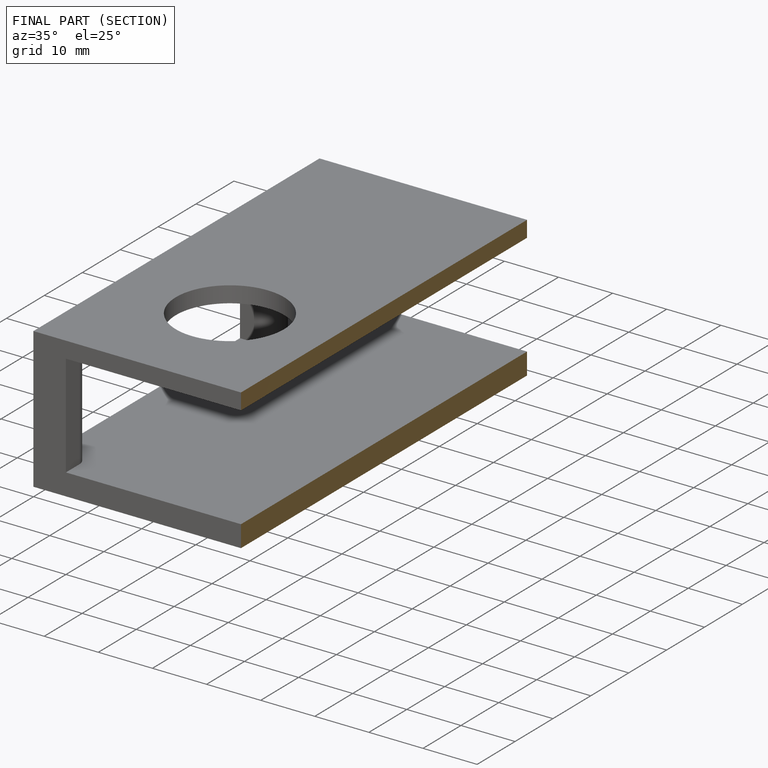
[diagram: finished part — half-section view (interior)]
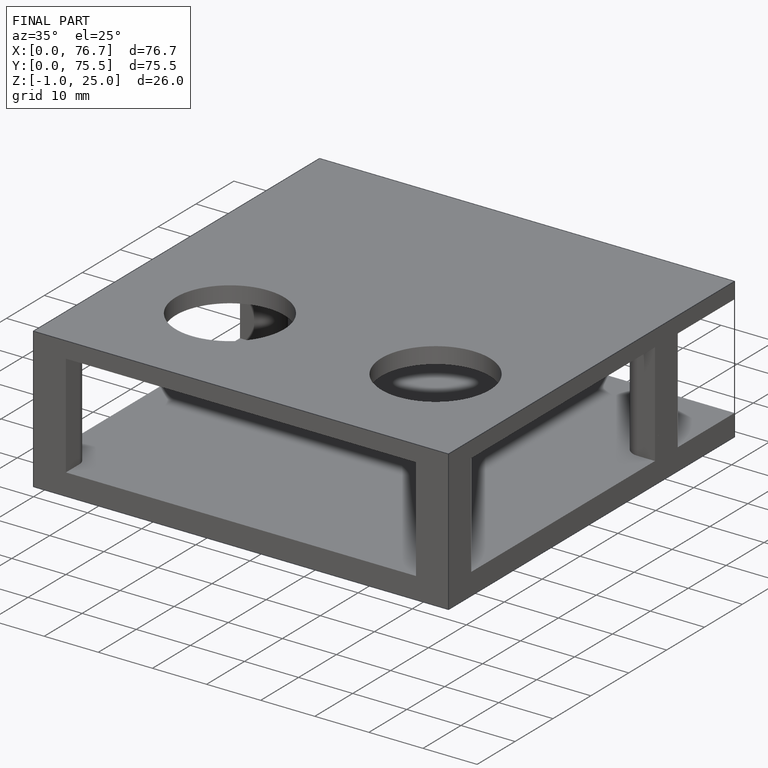
[diagram: finished part — iso view with bounding-box wireframe]
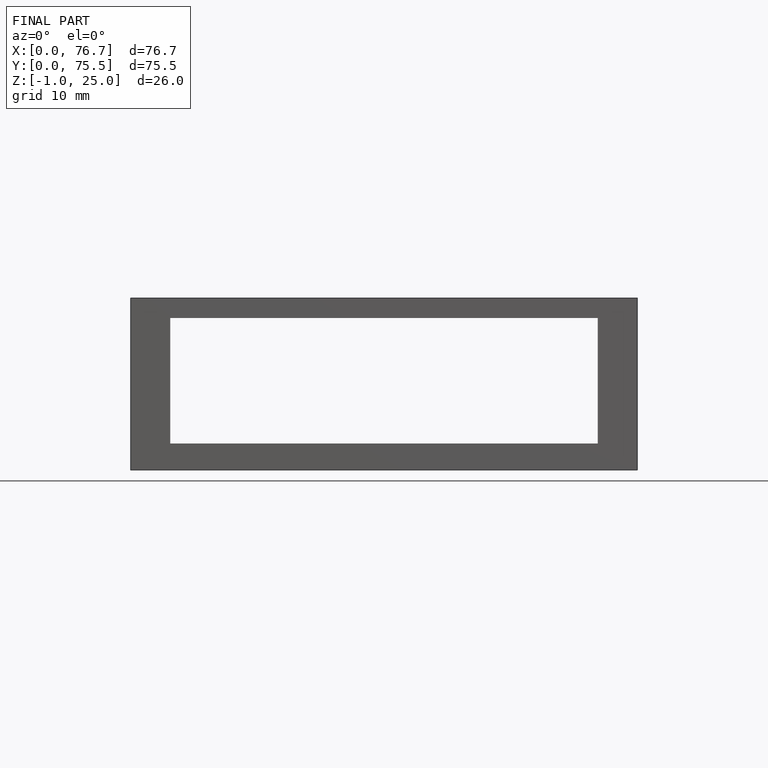
[diagram: finished part — front view with bounding-box wireframe]
